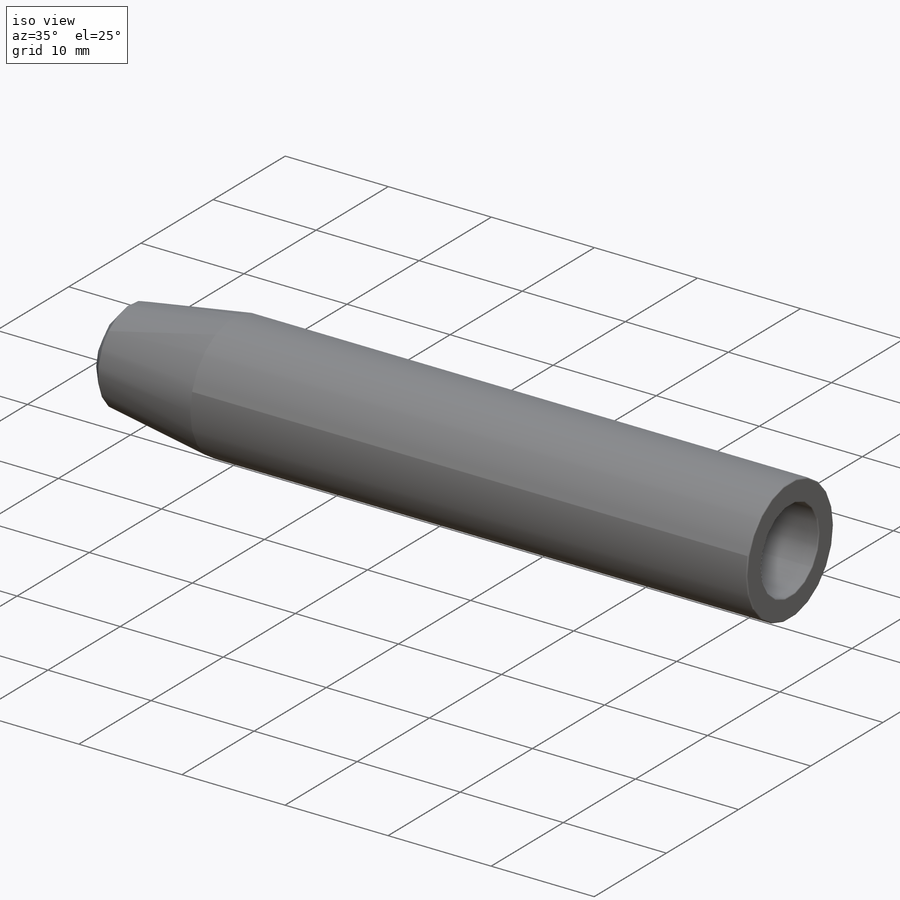
[diagram: iso view]
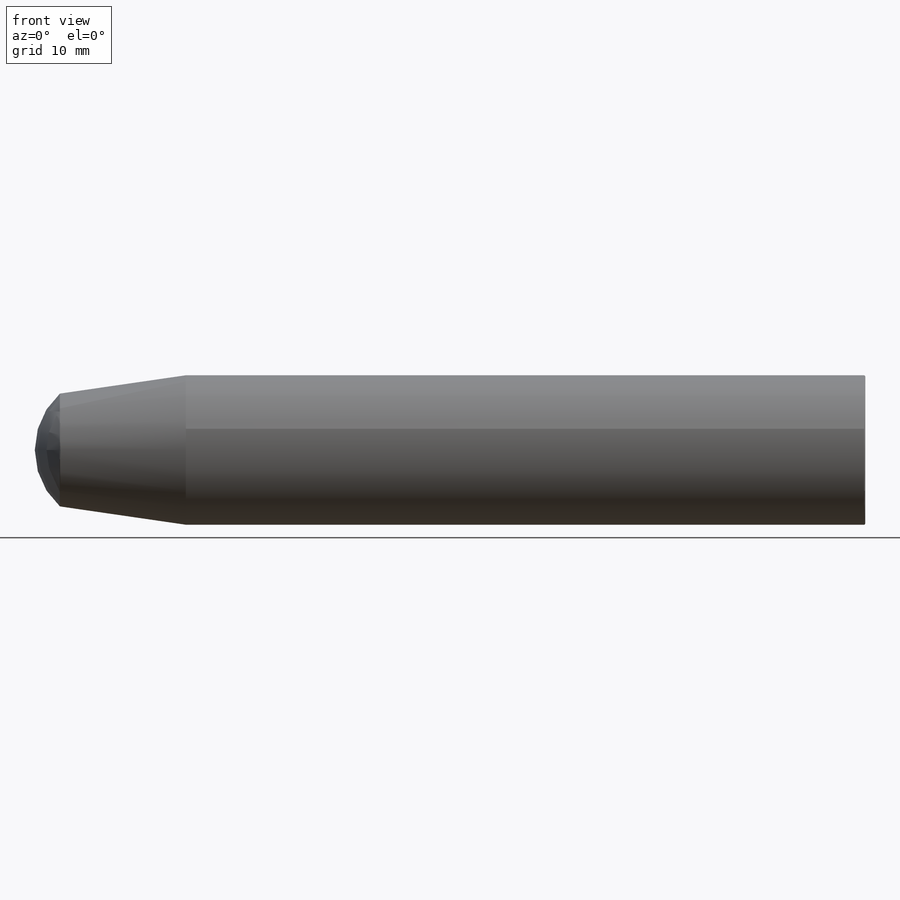
[diagram: front view]
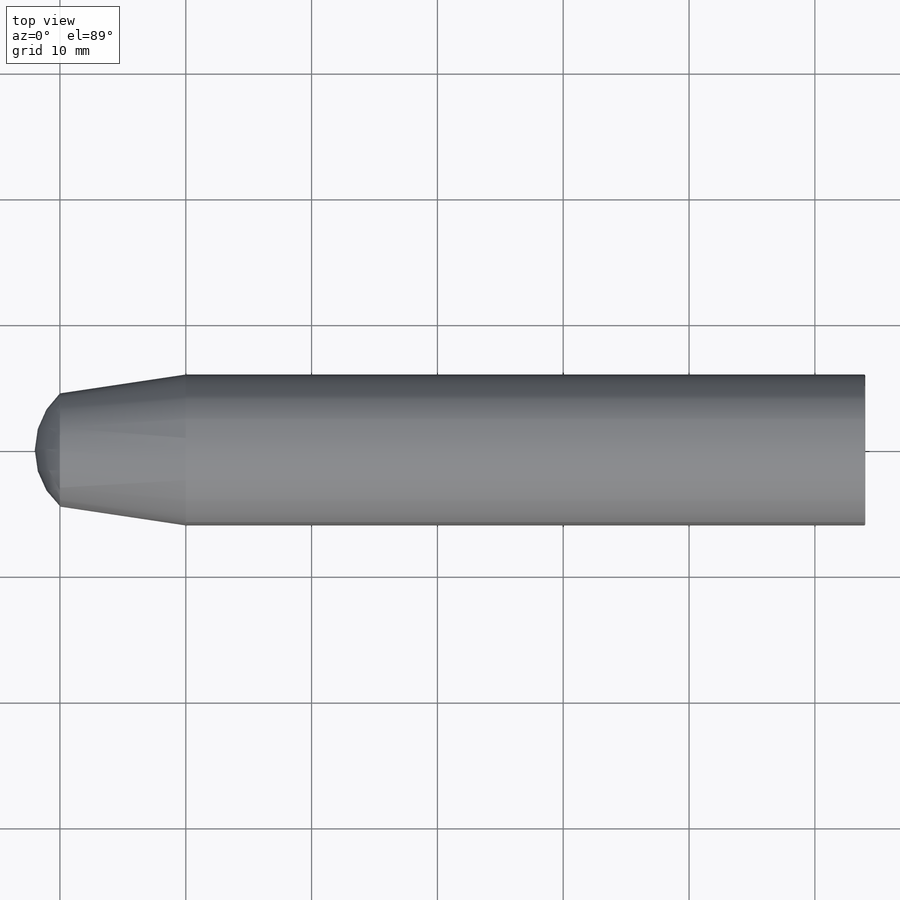
[diagram: top view]
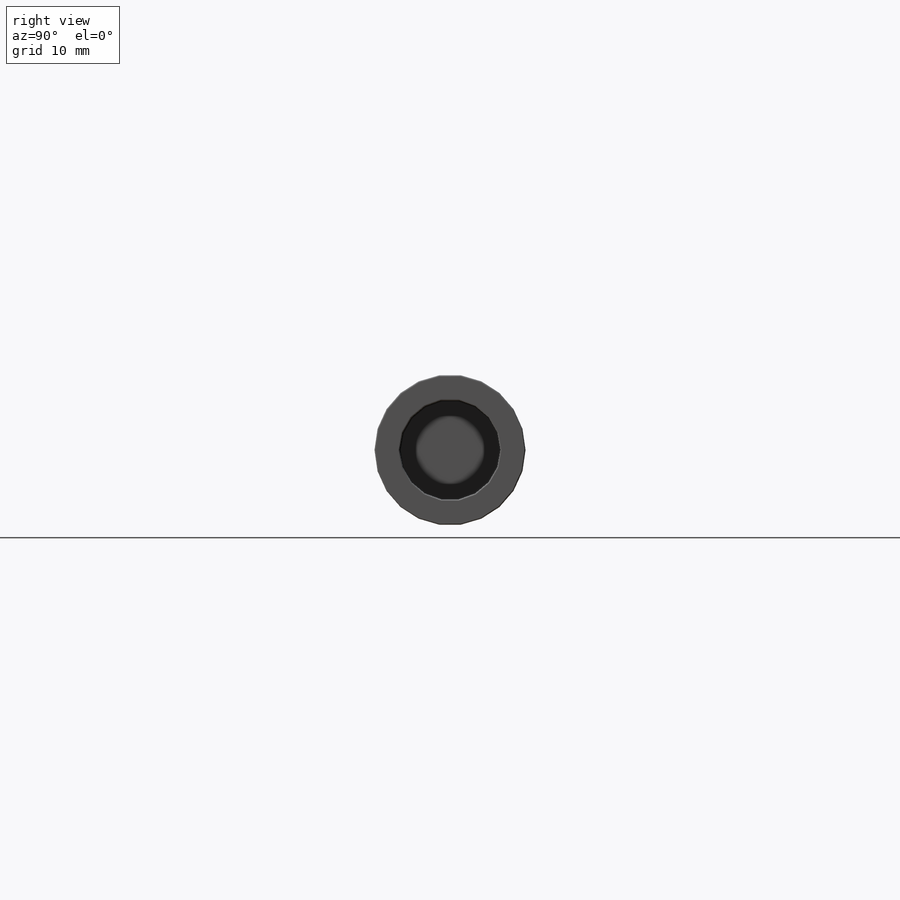
[diagram: right view]
SOLIDWORKS PART (.sldprt)
format: sldprt  version: not decoded by parser v0  size: 250,368 bytes
history: native  units: mm
features: sketch x4, material x1, extrude x1, plane x1, dome x1, fillet x1 (+11 scaffold rows collapsed)
feature tree (20):
  scaffold x11  (default folders/planes/origin — collapsed)
  material  "Material <not specified>"
  sketch  "Sketch1"  dims[D1=12.0mm D2=8.0mm]
  extrude  "Boss-Extrude1"  Depth=54mm
  sketch  "Sketch2"  dims[D1=12.0mm]
  plane  "Plane1"  Offset=10mm
  sketch  "Sketch3"  dims[D1=9.0mm]
  dome  "Dome1"
  sketch  "Sketch4"
  fillet  "Fillet1"  Radius=0.1mm
decode coverage: 5 of 7 modeling features carry decoded parameters
note: suppression state not decoded; provenance and decode notes live in map.json
